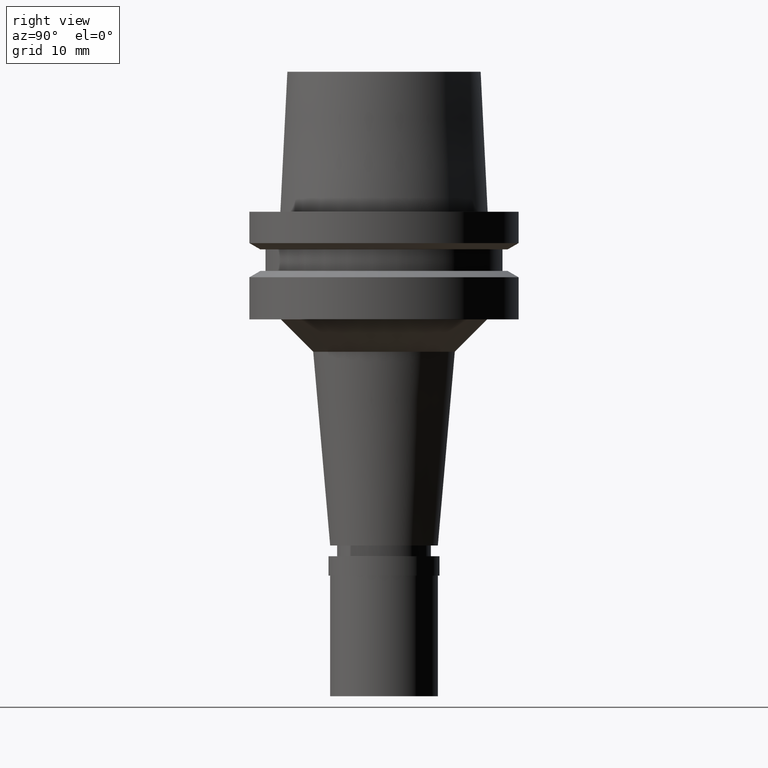
[diagram: clean part render]
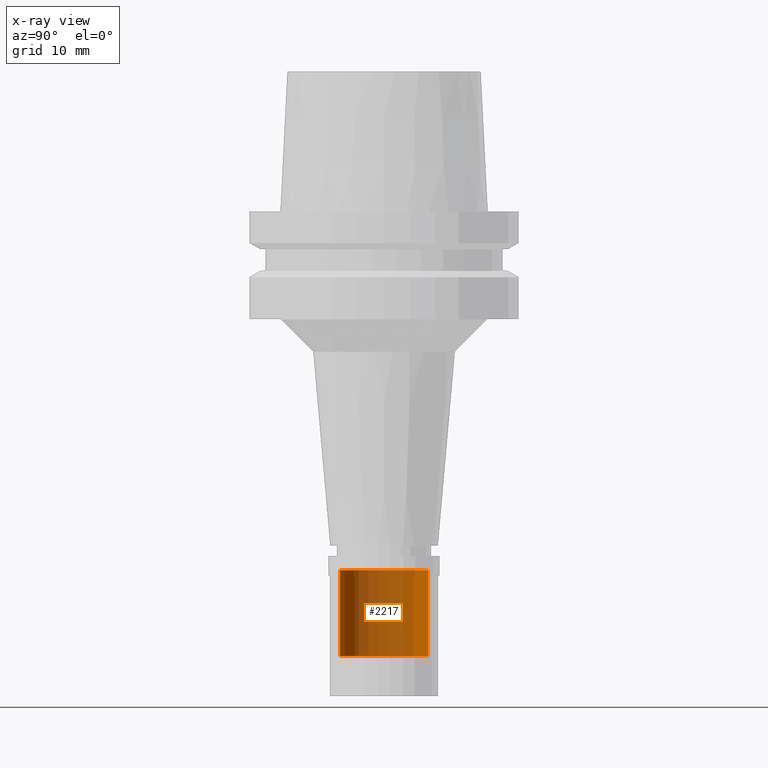
[diagram: x-ray — body ghosted, one internal face saturated and labeled with its STEP entity id]
A machine part, right view, then the same camera in x-ray: the body is ghosted and one INTERNAL B-rep face — a face not visible from any outside direction — is saturated and labeled: STEP entity #2217.
In plain terms, the highlighted cylindrical surface (partial cylindrical patch) has radius 4.1 mm, axis along (0, 0, 1).
Its self-contained STEP definition (entity closure, byte-faithful):
#71 = AXIS2_PLACEMENT_3D ( 'NONE', #2204, #986, #2629 ) ;
#311 = CARTESIAN_POINT ( 'NONE',  ( 0.0000000000000000000, 4.100000000000000533, -33.30000000000000426 ) ) ;
#417 = DIRECTION ( 'NONE',  ( 0.0000000000000000000, 0.0000000000000000000, 1.000000000000000000 ) ) ;
#539 = CARTESIAN_POINT ( 'NONE',  ( 0.0000000000000000000, 4.100000000000000533, -33.30000000000000426 ) ) ;
#617 = CARTESIAN_POINT ( 'NONE',  ( 0.0000000000000000000, 0.0000000000000000000, -44.01500000000000057 ) ) ;
#676 = EDGE_CURVE ( 'NONE', #1976, #2667, #2395, .T. ) ;
#692 = CIRCLE ( 'NONE', #71, 4.100000000000000533 ) ;
#697 = AXIS2_PLACEMENT_3D ( 'NONE', #617, #1250, #1044 ) ;
#832 = VERTEX_POINT ( 'NONE', #1455 ) ;
#986 = DIRECTION ( 'NONE',  ( 0.0000000000000000000, 0.0000000000000000000, -1.000000000000000000 ) ) ;
#999 = DIRECTION ( 'NONE',  ( 0.0000000000000000000, 0.0000000000000000000, -1.000000000000000000 ) ) ;
#1044 = DIRECTION ( 'NONE',  ( 0.0000000000000000000, 1.000000000000000000, 0.0000000000000000000 ) ) ;
#1046 = ORIENTED_EDGE ( 'NONE', *, *, #676, .T. ) ;
#1238 = FACE_OUTER_BOUND ( 'NONE', #1244, .T. ) ;
#1244 = EDGE_LOOP ( 'NONE', ( #1549, #1665, #1510, #1046 ) ) ;
#1250 = DIRECTION ( 'NONE',  ( 0.0000000000000000000, 0.0000000000000000000, 1.000000000000000000 ) ) ;
#1400 = CIRCLE ( 'NONE', #2599, 4.100000000000000533 ) ;
#1455 = CARTESIAN_POINT ( 'NONE',  ( 0.0000000000000000000, -4.100000000000000533, -33.30000000000000426 ) ) ;
#1510 = ORIENTED_EDGE ( 'NONE', *, *, #1924, .T. ) ;
#1549 = ORIENTED_EDGE ( 'NONE', *, *, #1656, .T. ) ;
#1656 = EDGE_CURVE ( 'NONE', #2667, #2460, #1400, .T. ) ;
#1665 = ORIENTED_EDGE ( 'NONE', *, *, #2355, .F. ) ;
#1668 = LINE ( 'NONE', #1683, #2511 ) ;
#1673 = CARTESIAN_POINT ( 'NONE',  ( 0.0000000000000000000, 0.0000000000000000000, -41.30000000000000426 ) ) ;
#1683 = CARTESIAN_POINT ( 'NONE',  ( 0.0000000000000000000, -4.100000000000000533, -33.30000000000000426 ) ) ;
#1924 = EDGE_CURVE ( 'NONE', #832, #1976, #692, .T. ) ;
#1948 = CARTESIAN_POINT ( 'NONE',  ( 0.0000000000000000000, -4.100000000000000533, -41.30000000000000426 ) ) ;
#1976 = VERTEX_POINT ( 'NONE', #539 ) ;
#2100 = DIRECTION ( 'NONE',  ( 0.0000000000000000000, 1.000000000000000000, 0.0000000000000000000 ) ) ;
#2204 = CARTESIAN_POINT ( 'NONE',  ( 0.0000000000000000000, 0.0000000000000000000, -33.30000000000000426 ) ) ;
#2217 = ADVANCED_FACE ( 'NONE', ( #1238 ), #2467, .T. ) ;
#2355 = EDGE_CURVE ( 'NONE', #832, #2460, #1668, .T. ) ;
#2362 = DIRECTION ( 'NONE',  ( 0.0000000000000000000, 0.0000000000000000000, -1.000000000000000000 ) ) ;
#2395 = LINE ( 'NONE', #311, #2509 ) ;
#2401 = CARTESIAN_POINT ( 'NONE',  ( 0.0000000000000000000, 4.100000000000000533, -41.30000000000000426 ) ) ;
#2460 = VERTEX_POINT ( 'NONE', #1948 ) ;
#2467 = CYLINDRICAL_SURFACE ( 'NONE', #697, 4.100000000000000533 ) ;
#2509 = VECTOR ( 'NONE', #2362, 1000.000000000000000 ) ;
#2511 = VECTOR ( 'NONE', #999, 1000.000000000000000 ) ;
#2599 = AXIS2_PLACEMENT_3D ( 'NONE', #1673, #417, #2100 ) ;
#2629 = DIRECTION ( 'NONE',  ( 0.0000000000000000000, -1.000000000000000000, 0.0000000000000000000 ) ) ;
#2667 = VERTEX_POINT ( 'NONE', #2401 ) ;